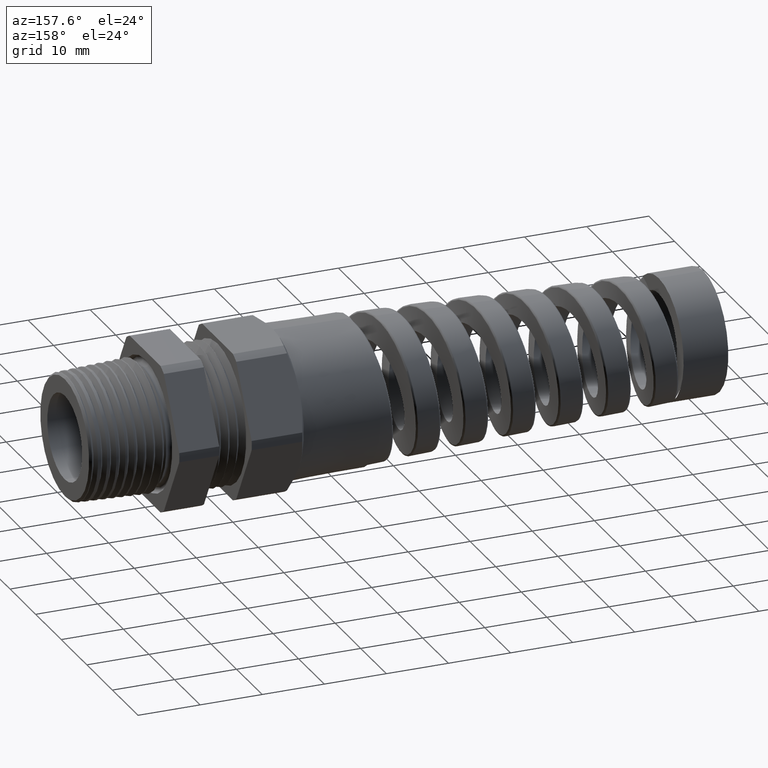
[diagram: clean part render]
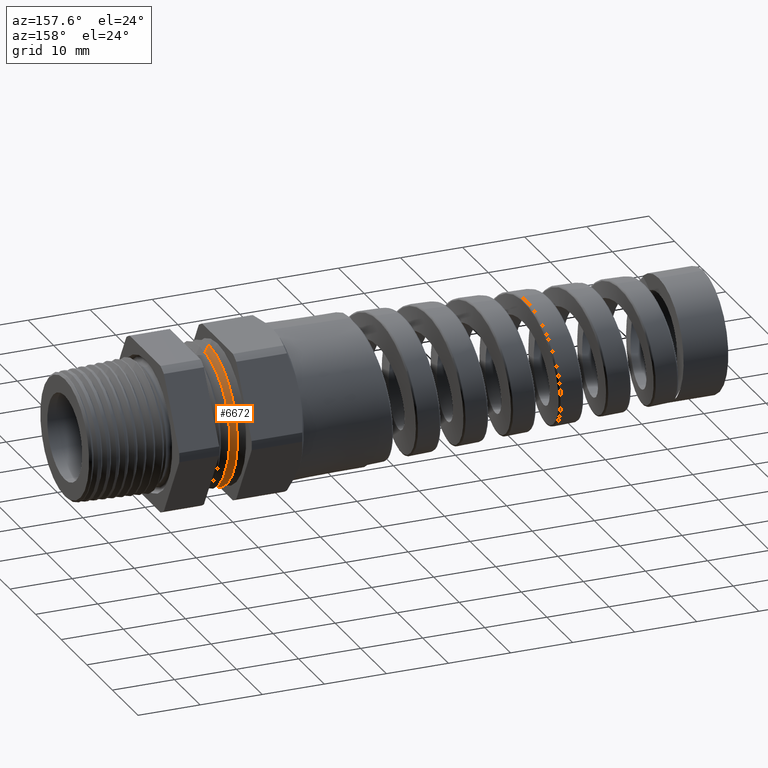
[diagram: same view with one face highlighted and labeled with its STEP entity id]
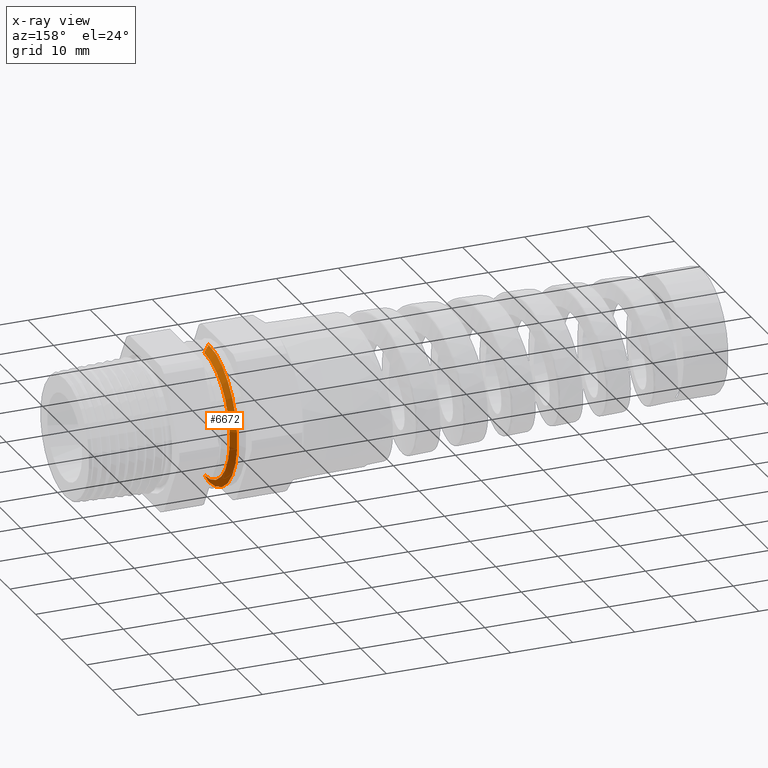
[diagram: x-ray of the same camera — body ghosted, the highlighted face saturated]
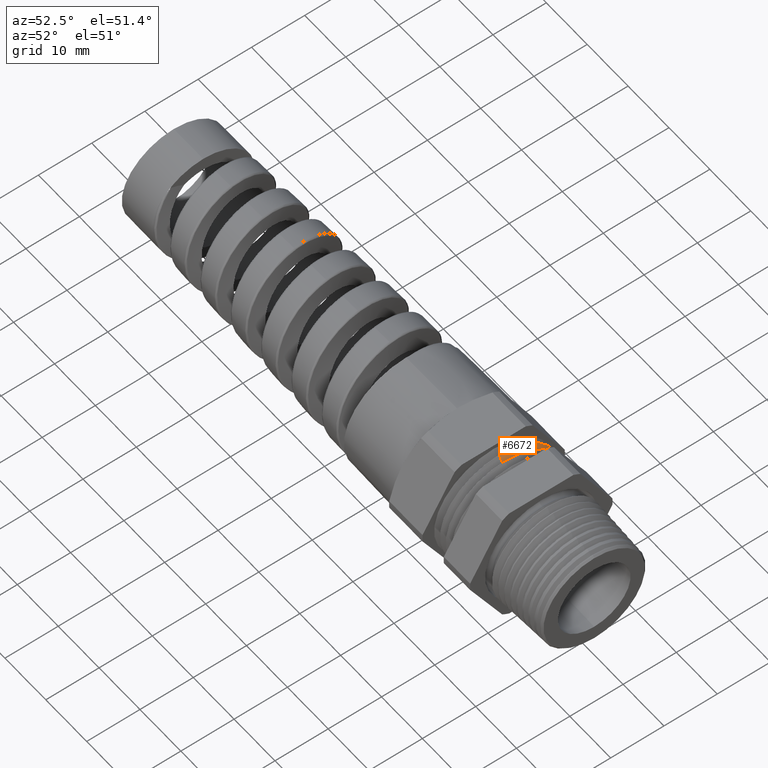
[diagram: same view with one face highlighted and labeled with its STEP entity id]
A machine part, auxiliary view. The second image highlights one B-rep face of the part: STEP entity #6672.
The next image is the same camera in x-ray: the body ghosted, the highlighted face saturated — about 0% of this face is hidden behind the body in this view.
A second angle (auxiliary view) of the same face is appended — the face is thin or edge-on in the first view.
In plain terms, the highlighted conical surface has half-angle 60 deg.
Its self-contained STEP definition (entity closure, byte-faithful):
#6644 = VERTEX_POINT ( 'NONE', #8022 ) ;
#6648 = VERTEX_POINT ( 'NONE', #8012 ) ;
#6649 = VERTEX_POINT ( 'NONE', #8011 ) ;
#6672 = ADVANCED_FACE ( 'NONE', ( #8110 ), #8108, .T. ) ;
#6673 = ORIENTED_EDGE ( 'NONE', *, *, #6674, .F. ) ;
#6674 = EDGE_CURVE ( 'NONE', #6649, #6680, #8103, .T. ) ;
#6675 = ORIENTED_EDGE ( 'NONE', *, *, #6676, .T. ) ;
#6676 = EDGE_CURVE ( 'NONE', #6649, #6648, #8097, .T. ) ;
#6680 = VERTEX_POINT ( 'NONE', #8091 ) ;
#6682 = ORIENTED_EDGE ( 'NONE', *, *, #6683, .T. ) ;
#6683 = EDGE_CURVE ( 'NONE', #6648, #6644, #8088, .T. ) ;
#6684 = ORIENTED_EDGE ( 'NONE', *, *, #6685, .F. ) ;
#6685 = EDGE_CURVE ( 'NONE', #6680, #6644, #8082, .T. ) ;
#6690 = EDGE_LOOP ( 'NONE', ( #6673, #6675, #6682, #6684 ) ) ;
#8011 = CARTESIAN_POINT ( 'NONE',  ( -0.3756666794885449300, 0.0000000000000000000, -0.3922686249999999800 ) ) ;
#8012 = CARTESIAN_POINT ( 'NONE',  ( -0.4031666666666665600, 5.387221269449206900E-017, -0.4399000000000000100 ) ) ;
#8022 = CARTESIAN_POINT ( 'NONE',  ( -0.4031666666666665600, 0.0000000000000000000, 0.4399000000000000100 ) ) ;
#8079 = DIRECTION ( 'NONE',  ( -0.4999999999999943400, 0.0000000000000000000, 0.8660254037844418200 ) ) ;
#8080 = VECTOR ( 'NONE', #8079, 39.37007874015748100 ) ;
#8081 = CARTESIAN_POINT ( 'NONE',  ( -0.4031666666666665600, 0.0000000000000000000, 0.4399000000000000100 ) ) ;
#8082 = LINE ( 'NONE', #8081, #8080 ) ;
#8084 = DIRECTION ( 'NONE',  ( 0.0000000000000000000, 0.0000000000000000000, -1.000000000000000000 ) ) ;
#8085 = DIRECTION ( 'NONE',  ( 1.000000000000000000, 0.0000000000000000000, 0.0000000000000000000 ) ) ;
#8086 = CARTESIAN_POINT ( 'NONE',  ( -0.4031666666666665600, 0.0000000000000000000, 0.0000000000000000000 ) ) ;
#8087 = AXIS2_PLACEMENT_3D ( 'NONE', #8086, #8085, #8084 ) ;
#8088 = CIRCLE ( 'NONE', #8087, 0.4399000000000000100 ) ;
#8091 = CARTESIAN_POINT ( 'NONE',  ( -0.3756666794885449300, 5.095563214785520700E-017, 0.3922686249999999800 ) ) ;
#8094 = DIRECTION ( 'NONE',  ( -0.4999999999999943400, 1.060575238724910900E-016, -0.8660254037844418200 ) ) ;
#8095 = VECTOR ( 'NONE', #8094, 39.37007874015748100 ) ;
#8096 = CARTESIAN_POINT ( 'NONE',  ( -0.4031666666666665600, 5.387221269449206900E-017, -0.4399000000000000100 ) ) ;
#8097 = LINE ( 'NONE', #8096, #8095 ) ;
#8099 = DIRECTION ( 'NONE',  ( 0.0000000000000000000, 0.0000000000000000000, -1.000000000000000000 ) ) ;
#8101 = DIRECTION ( 'NONE',  ( 1.000000000000000000, 0.0000000000000000000, 0.0000000000000000000 ) ) ;
#8102 = AXIS2_PLACEMENT_3D ( 'NONE', #8109, #8101, #8099 ) ;
#8103 = CIRCLE ( 'NONE', #8102, 0.3922686249999999800 ) ;
#8104 = DIRECTION ( 'NONE',  ( 0.0000000000000000000, 0.0000000000000000000, 1.000000000000000000 ) ) ;
#8105 = DIRECTION ( 'NONE',  ( -1.000000000000000000, 0.0000000000000000000, 0.0000000000000000000 ) ) ;
#8106 = CARTESIAN_POINT ( 'NONE',  ( -0.4031666666666665600, 0.0000000000000000000, 0.0000000000000000000 ) ) ;
#8107 = AXIS2_PLACEMENT_3D ( 'NONE', #8106, #8105, #8104 ) ;
#8108 = CONICAL_SURFACE ( 'NONE', #8107, 0.4399000000000000100, 1.047197551196604300 ) ;
#8109 = CARTESIAN_POINT ( 'NONE',  ( -0.3756666794885449300, 0.0000000000000000000, 0.0000000000000000000 ) ) ;
#8110 = FACE_OUTER_BOUND ( 'NONE', #6690, .T. ) ;